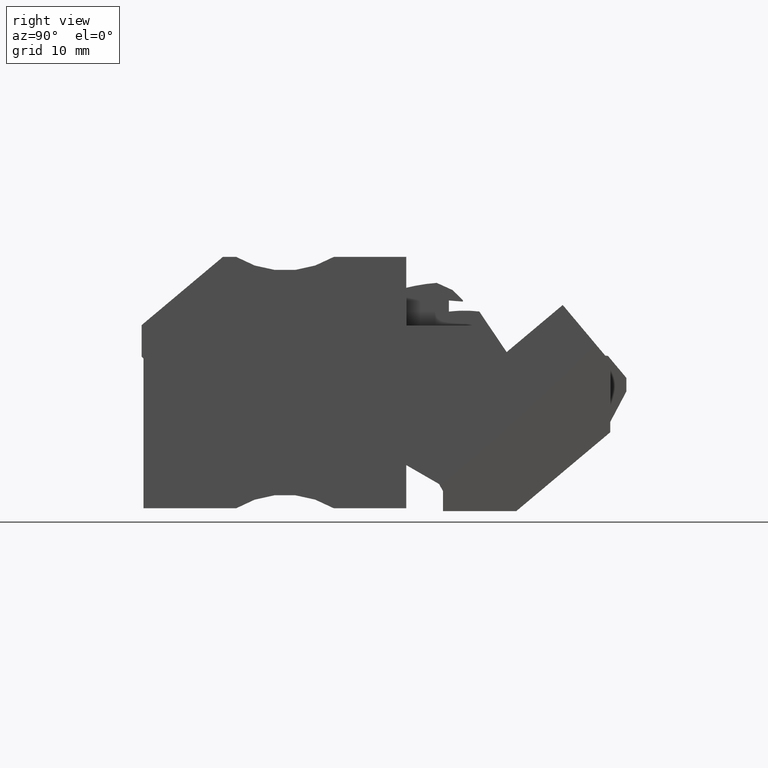
[diagram: clean part render]
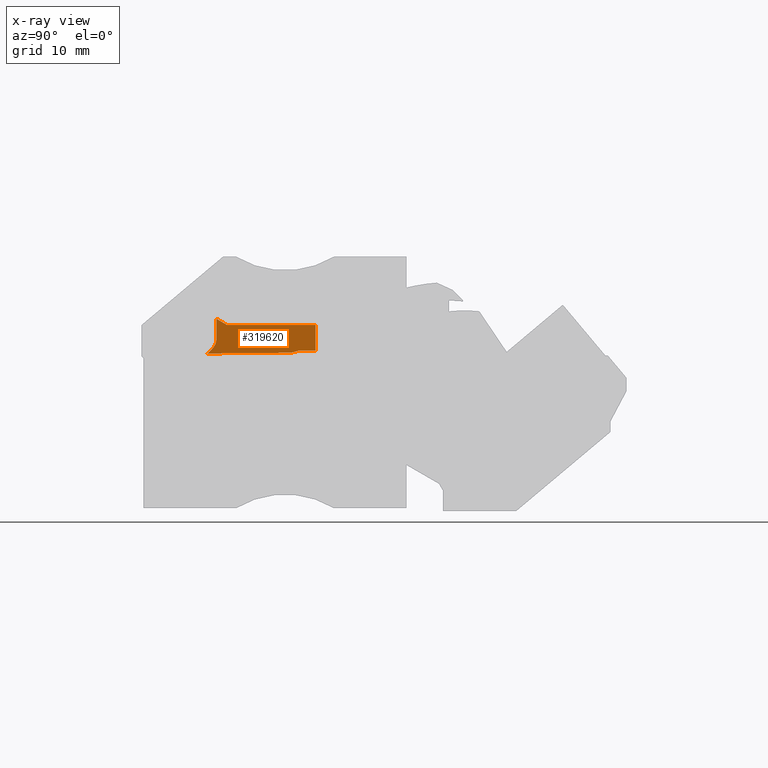
[diagram: x-ray — body ghosted, one internal face saturated and labeled with its STEP entity id]
A machine part, right view, then the same camera in x-ray: the body is ghosted and one INTERNAL B-rep face — a face not visible from any outside direction — is saturated and labeled: STEP entity #319620.
In plain terms, the highlighted planar face has unit normal (-1, 0, 0).
Its self-contained STEP definition (entity closure, byte-faithful):
#102540=CARTESIAN_POINT('',(423.016914991146,683.886335208509,
84.6699999829062));
#102550=DIRECTION('',(0.965925826756713,0.258819043357248,
-3.79102048216828E-11));
#102560=VECTOR('',#102550,1.);
#102570=LINE('',#102540,#102560);
#102580=CARTESIAN_POINT('',(436.068013272554,687.383366428071,
84.6699999823968));
#102590=VERTEX_POINT('',#102580);
#102600=CARTESIAN_POINT('',(437.004730016151,687.634358921055,
84.6699999823573));
#102610=VERTEX_POINT('',#102600);
#102620=EDGE_CURVE('',#102590,#102610,#102570,.T.);
#119400=CARTESIAN_POINT('',(428.516102331043,688.734358735133,
86.3199999829747));
#119410=DIRECTION('',(-1.,1.98497844528636E-9,-5.37042767448157E-11));
#119420=DIRECTION('',(-1.98495192504897E-9,-1.,4.42871223279918E-10));
#119430=AXIS2_PLACEMENT_3D('',#119400,#119410,#119420);
#119440=CONICAL_SURFACE('',#119430,1.4398990952349,0.5235987755983);
#128890=CARTESIAN_POINT('',(438.648616184603,676.714061019204,
84.6699999862829));
#128900=DIRECTION('',(5.59150170609455E-10,-1.,3.51221513140156E-10));
#128910=VECTOR('',#128900,1.);
#128920=LINE('',#128890,#128910);
#128930=CARTESIAN_POINT('',(438.648616176987,690.334347585901,
84.6699999814992));
#128940=VERTEX_POINT('',#128930);
#128950=CARTESIAN_POINT('',(438.648616178497,687.634358918162,
84.6699999824445));
#128960=VERTEX_POINT('',#128950);
#128970=EDGE_CURVE('',#128940,#128960,#128920,.T.);
#143480=CARTESIAN_POINT('',(416.568902626307,690.334347591075,
84.6699999802878));
#143490=DIRECTION('',(1.,-2.34350927552617E-10,5.48619602860575E-11));
#143500=VECTOR('',#143490,1.);
#143510=LINE('',#143480,#143500);
#143520=CARTESIAN_POINT('',(429.278049221869,690.334347588097,
84.6699999809851));
#143530=VERTEX_POINT('',#143520);
#143540=EDGE_CURVE('',#143530,#128940,#143510,.T.);
#288320=CARTESIAN_POINT('',(449.568914094368,687.634358898947,
84.6699999830466));
#288330=DIRECTION('',(1.,-1.75962394655114E-9,5.48619612102419E-11));
#288340=VECTOR('',#288330,1.);
#288350=LINE('',#288320,#288340);
#288360=EDGE_CURVE('',#102610,#128960,#288350,.T.);
#318610=CARTESIAN_POINT('',(439.003158794564,695.383861714499,
84.6699999797451));
#318620=DIRECTION('',(5.48619395602313E-11,-3.51221505597609E-10,-1.));
#318630=DIRECTION('',(-1.32734873092824E-9,-1.,3.51221505524789E-10));
#318640=AXIS2_PLACEMENT_3D('',#318610,#318620,#318630);
#318650=PLANE('',#318640);
#318660=ORIENTED_EDGE('',*,*,#128970,.F.);
#318670=ORIENTED_EDGE('',*,*,#288360,.T.);
#318680=ORIENTED_EDGE('',*,*,#102620,.T.);
#318690=CARTESIAN_POINT('',(419.663047713779,687.240202495097,
84.6699999815443));
#318700=DIRECTION('',(0.999961923081495,0.00872653351327912,
5.17949545808724E-11));
#318710=VECTOR('',#318700,1.);
#318720=LINE('',#318690,#318710);
#318730=CARTESIAN_POINT('',(427.230390921099,687.306241683771,
84.6699999819363));
#318740=VERTEX_POINT('',#318730);
#318750=EDGE_CURVE('',#318740,#102590,#318720,.T.);
#318760=ORIENTED_EDGE('',*,*,#318750,.T.);
#318770=CARTESIAN_POINT('',(427.230390921223,687.306241683898,
84.6699999819365));
#318780=CARTESIAN_POINT('',(427.269687427298,687.34090938432,
84.6699999819265));
#318790=CARTESIAN_POINT('',(427.308660575153,687.376011359042,
84.669999981916));
#318800=CARTESIAN_POINT('',(427.347205621983,687.411589676223,
84.6699999819056));
#318810=CARTESIAN_POINT('',(427.385750737358,687.447168056674,
84.6699999818953));
#318820=CARTESIAN_POINT('',(427.423868616499,687.483222890919,
84.6699999818847));
#318830=CARTESIAN_POINT('',(427.461441353598,687.519816115706,
84.6699999818739));
#318840=CARTESIAN_POINT('',(427.499014085738,687.556409335662,
84.6699999818631));
#318850=CARTESIAN_POINT('',(427.536043212389,687.593541417054,
84.6699999818521));
#318860=CARTESIAN_POINT('',(427.572389378941,687.631299091695,
84.6699999818408));
#318870=CARTESIAN_POINT('',(427.590562532455,687.650178001981,
84.6699999818352));
#318880=CARTESIAN_POINT('',(427.608564700066,687.669213885159,
84.6699999818295));
#318890=CARTESIAN_POINT('',(427.626375481132,687.688420381307,
84.6699999818237));
#318900=CARTESIAN_POINT('',(427.644186247659,687.707626861776,
84.669999981818));
#318910=CARTESIAN_POINT('',(427.661805729214,687.727004008141,
84.6699999818252));
#318920=CARTESIAN_POINT('',(427.679210680864,687.746567394765,
84.6699999818193));
#318930=B_SPLINE_CURVE_WITH_KNOTS('',3,(#318770,#318780,#318790,#318800,
#318810,#318820,#318830,#318840,#318850,#318860,#318870,#318880,#318890,
#318900,#318910,#318920),.UNSPECIFIED.,.F.,.F.,(4,3,3,3,3,4),(0.,
0.157305173026817,0.314671771744464,0.471961512916391,0.550558712877485,
0.62912621570121),.UNSPECIFIED.);
#318940=SURFACE_CURVE('',#318930,(#119440,#318650),.CURVE_3D.);
#318950=CARTESIAN_POINT('',(427.679210681164,687.746567395169,
84.6699999818062));
#318960=VERTEX_POINT('',#318950);
#318970=EDGE_CURVE('',#318740,#318960,#318940,.T.);
#318980=ORIENTED_EDGE('',*,*,#318970,.F.);
#318990=CARTESIAN_POINT('',(428.152196886817,688.734358735119,
84.6699999814852));
#319000=CARTESIAN_POINT('',(428.152196886767,688.71114176503,
84.6699999814934));
#319010=CARTESIAN_POINT('',(428.151347710352,688.687915861699,
84.6699999815015));
#319020=CARTESIAN_POINT('',(428.149649965734,688.66468306952,
84.6699999815096));
#319030=CARTESIAN_POINT('',(428.147952567501,688.641455017441,
84.6699999815177));
#319040=CARTESIAN_POINT('',(428.14540695124,688.618241432146,
84.6699999815259));
#319050=CARTESIAN_POINT('',(428.142037669133,688.595109634627,
84.6699999815338));
#319060=CARTESIAN_POINT('',(428.138668418618,688.571978054,
84.6699999815418));
#319070=CARTESIAN_POINT('',(428.13447592362,688.548930721069,
84.6699999815507));
#319080=CARTESIAN_POINT('',(428.129508912972,688.526036925603,
84.6699999815585));
#319090=CARTESIAN_POINT('',(428.12454190921,688.503143161877,
84.6699999815663));
#319100=CARTESIAN_POINT('',(428.118801074785,688.480404882594,
84.6699999815747));
#319110=CARTESIAN_POINT('',(428.112355610436,688.457886431949,
84.6699999815823));
#319120=CARTESIAN_POINT('',(428.105910116544,688.435367878093,
84.6699999815899));
#319130=CARTESIAN_POINT('',(428.098760734364,688.413070475355,
84.6699999815958));
#319140=CARTESIAN_POINT('',(428.090991235594,688.39104963742,
84.6699999816031));
#319150=CARTESIAN_POINT('',(428.083221555879,688.369028286638,
84.6699999816104));
#319160=CARTESIAN_POINT('',(428.074832942172,688.347285604638,
84.669999981617));
#319170=CARTESIAN_POINT('',(428.065915773341,688.325862621752,
84.669999981624));
#319180=CARTESIAN_POINT('',(428.056995444876,688.304432048029,
84.669999981631));
#319190=CARTESIAN_POINT('',(428.04751292646,688.283239181667,
84.6699999816379));
#319200=CARTESIAN_POINT('',(428.037525103461,688.262275803418,
84.6699999816448));
#319210=CARTESIAN_POINT('',(428.027537240378,688.241312341036,
84.6699999816516));
#319220=CARTESIAN_POINT('',(428.017043974993,688.220578103932,
84.6699999816583));
#319230=CARTESIAN_POINT('',(428.006097951984,688.200064041371,
84.6699999816649));
#319240=CARTESIAN_POINT('',(427.995151901177,688.179549926713,
84.6699999816715));
#319250=CARTESIAN_POINT('',(427.983752971718,688.159255761642,
84.669999981678));
#319260=CARTESIAN_POINT('',(427.971949902577,688.139172811379,
84.6699999816844));
#319270=CARTESIAN_POINT('',(427.960146818217,688.119089835221,
84.6699999816908));
#319280=CARTESIAN_POINT('',(427.947939471827,688.099217896713,
84.6699999816971));
#319290=CARTESIAN_POINT('',(427.93537326702,688.079549371528,
84.6699999817033));
#319300=CARTESIAN_POINT('',(427.910241153946,688.040212785298,
84.6699999817158));
#319310=CARTESIAN_POINT('',(427.88367453467,688.001686323706,
84.6699999817278));
#319320=CARTESIAN_POINT('',(427.856007576727,687.963930850294,
84.6699999817396));
#319330=CARTESIAN_POINT('',(427.828340681538,687.926175462518,
84.6699999817513));
#319340=CARTESIAN_POINT('',(427.799571019165,687.889188971262,
84.6699999817627));
#319350=CARTESIAN_POINT('',(427.770005847583,687.852961140362,
84.6699999817738));
#319360=CARTESIAN_POINT('',(427.740440833558,687.816733502524,
84.6699999817849));
#319370=CARTESIAN_POINT('',(427.710078897562,687.781263662309,
84.6699999817958));
#319380=CARTESIAN_POINT('',(427.679210681164,687.746567395169,
84.6699999818062));
#319390=B_SPLINE_CURVE_WITH_KNOTS('',3,(#318990,#319000,#319010,#319020,
#319030,#319040,#319050,#319060,#319070,#319080,#319090,#319100,#319110,
#319120,#319130,#319140,#319150,#319160,#319170,#319180,#319190,#319200,
#319210,#319220,#319230,#319240,#319250,#319260,#319270,#319280,#319290,
#319300,#319310,#319320,#319330,#319340,#319350,#319360,#319370,#319380)
,.UNSPECIFIED.,.F.,.F.,(4,3,3,3,3,3,3,3,3,3,3,3,3,4),(0.,
0.0697376606873931,0.139741293086688,0.209955002738327,0.280243491824752
,0.350422486854652,0.420274949246358,0.489919273095834,0.559624427119296
,0.629442190659224,0.69939480988247,0.839656142116061,0.980066359932564,
1.1199461316398),.UNSPECIFIED.);
#319400=SURFACE_CURVE('',#319390,(#318650,#119440),.CURVE_3D.);
#319410=CARTESIAN_POINT('',(428.152196886776,688.734358735122,
84.6699999814853));
#319420=VERTEX_POINT('',#319410);
#319430=EDGE_CURVE('',#319420,#318960,#319400,.T.);
#319440=ORIENTED_EDGE('',*,*,#319430,.T.);
#319450=CARTESIAN_POINT('',(428.152196917056,702.907704932485,
84.6699999765072));
#319460=DIRECTION('',(2.13640555246622E-9,1.,-3.51221506101979E-10));
#319470=VECTOR('',#319460,1.);
#319480=LINE('',#319450,#319470);
#319490=CARTESIAN_POINT('',(428.152196891709,690.984358736059,
84.6699999807675));
#319500=VERTEX_POINT('',#319490);
#319510=EDGE_CURVE('',#319420,#319500,#319480,.T.);
#319520=ORIENTED_EDGE('',*,*,#319510,.F.);
#319530=CARTESIAN_POINT('',(443.85366629827,681.919111118561,
84.6699999847403));
#319540=DIRECTION('',(-0.866025403093094,0.500000001197445,
-2.23122558293731E-10));
#319550=VECTOR('',#319540,1.);
#319560=LINE('',#319530,#319550);
#319570=EDGE_CURVE('',#143530,#319500,#319560,.T.);
#319580=ORIENTED_EDGE('',*,*,#319570,.T.);
#319590=ORIENTED_EDGE('',*,*,#143540,.F.);
#319600=EDGE_LOOP('',(#319590,#319580,#319520,#319440,#318980,#318760,
#318680,#318670,#318660));
#319610=FACE_OUTER_BOUND('',#319600,.T.);
#319620=ADVANCED_FACE('',(#319610),#318650,.F.);